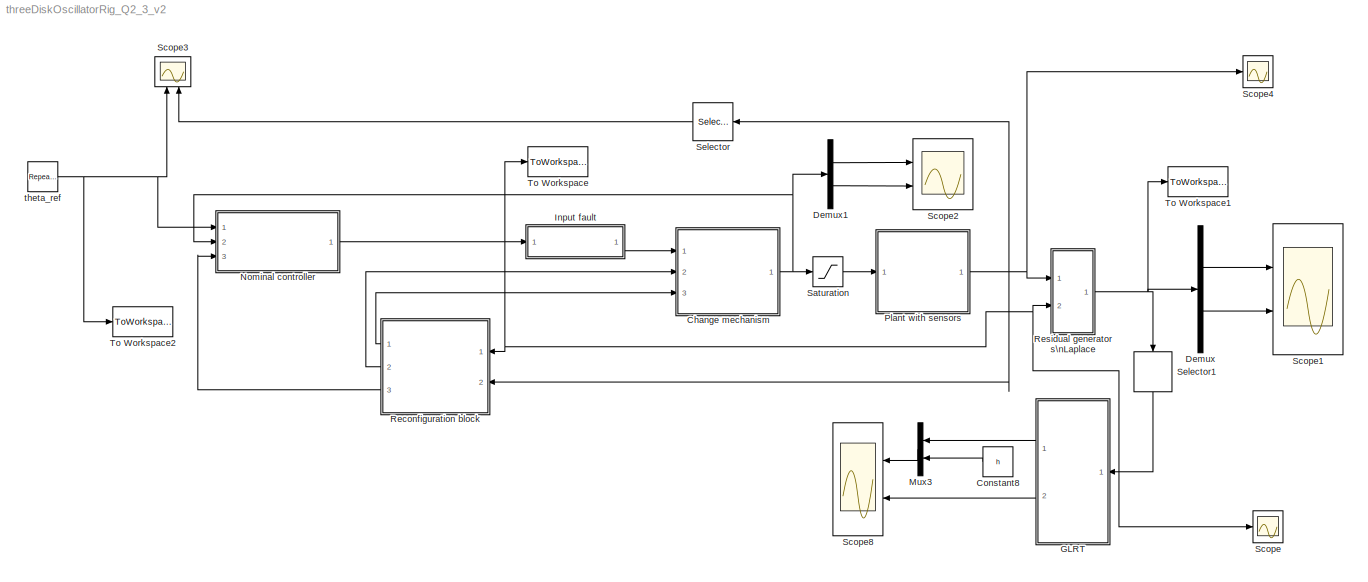
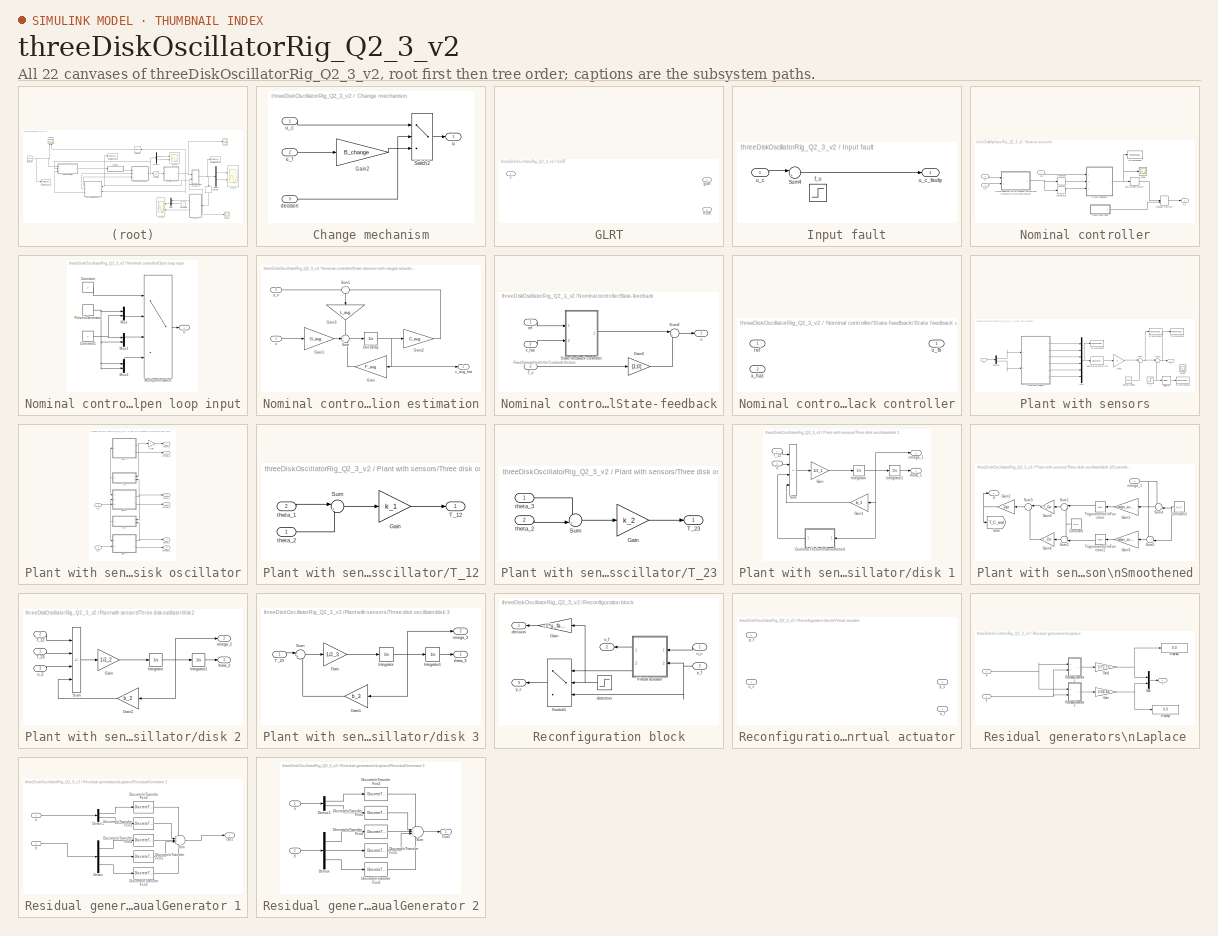
[diagram: thumbnail index - all 22 canvases of the model, root first then tree order]
MODEL threeDiskOscillatorRig_Q2_3_v2
KIND model
BLOCK [SubSystem] Change mechanism
  Ports = [3, 1]
  RequestExecContextInheritance = off
  SID = 1396
BLOCK [Gain] Change mechanism/Gain2
  Gain = B_change
  Multiplication = Matrix(K*u) (u vector)
  SID = 1340
BLOCK [Switch] Change mechanism/Switch2
  InputSameDT = off
  OutDataTypeStr = double
  SID = 1341
  SaturateOnIntegerOverflow = off
BLOCK [Inport] Change mechanism/decision
  Port = 3
  SID = 1398
BLOCK [Outport] Change mechanism/u
  SID = 1400
BLOCK [Inport] Change mechanism/u_c
  SID = 1397
BLOCK [Inport] Change mechanism/u_f
  Port = 2
  SID = 1399
BLOCK [Constant] Constant8
  SID = 1070
  Value = h
BLOCK [Demux] Demux
  Outputs = 2
  Ports = [1, 2]
  SID = 1314
BLOCK [Demux] Demux1
  Outputs = 2
  Ports = [1, 2]
  SID = 1382
BLOCK [SubSystem] GLRT
  Ports = [1, 2]
  RequestExecContextInheritance = off
  SID = 1061
BLOCK [Outport] GLRT/H_GLR
  Port = 2
  SID = 1067
  VectorParamsAs1DForOutWhenUnconnected = off
BLOCK [Outport] GLRT/g_GLR
  SID = 1066
  VectorParamsAs1DForOutWhenUnconnected = off
BLOCK [Inport] GLRT/z
  SID = 1062
BLOCK [SubSystem] Input fault
  Ports = [1, 1]
  RequestExecContextInheritance = off
  SID = 1393
BLOCK [Sum] Input fault/Sum4
  Inputs = |++
  Ports = [2, 1]
  SID = 561
BLOCK [Step] Input fault/f_u
  After = f_u
  SID = 563
  SampleTime = 0
  Time = f_u_time
BLOCK [Inport] Input fault/u_c
  SID = 1394
BLOCK [Outport] Input fault/u_c_faulty
  SID = 1395
BLOCK [Mux] Mux3
  DisplayOption = bar
  Inputs = 2
  Ports = [2, 1]
  SID = 1069
BLOCK [SubSystem] Nominal controller
  Ports = [3, 1]
  RequestExecContextInheritance = off
  SID = 1388
BLOCK [ManualSwitch] Nominal controller/Manual Switch
  CurrentSetting = 0
  SID = 1309
BLOCK [SubSystem] Nominal controller/Open loop input
  Ports = [0, 1]
  RequestExecContextInheritance = off
  SID = 1307
BLOCK [Constant] Nominal controller/Open loop input/Constant
  SID = 1302
  Value = 3
BLOCK [Constant] Nominal controller/Open loop input/Constant1
  SID = 1304
  Value = 0
BLOCK [MultiPortSwitch] Nominal controller/Open loop input/Multiport\nSwitch
  InputSameDT = off
  Ports = [4, 1]
  SID = 1301
  SaturateOnIntegerOverflow = off
BLOCK [Mux] Nominal controller/Open loop input/Mux
  DisplayOption = bar
  Inputs = 2
  Ports = [2, 1]
  SID = 1303
BLOCK [Mux] Nominal controller/Open loop input/Mux1
  DisplayOption = bar
  Inputs = 2
  Ports = [2, 1]
  SID = 1305
BLOCK [Mux] Nominal controller/Open loop input/Mux2
  DisplayOption = bar
  Inputs = 2
  Ports = [2, 1]
  SID = 1306
BLOCK [DiscretePulseGenerator] Nominal controller/Open loop input/Pulse\nGenerator
  Period = 10
  Ports = [0, 1]
  PulseType = Time based
  PulseWidth = 5
  SID = 1299
BLOCK [Outport] Nominal controller/Open loop input/u
  SID = 1308
BLOCK [Scope] Nominal controller/Scope
  Floating = off
  NumInputPorts = 1
  Ports = [1]
  SID = 657
  ScopeSpecificationString = Simulink.scopes.TimeScopeBlockCfg('CurrentConfiguration', extmgr.ConfigurationSet(extmgr.Configuration('Core','General UI',true),extmgr.Configuration('Core','Source UI',true),extmgr.Configuration('Sources','WiredSimulink',true,'DataLoggingVariableName','ScopeData1'),extmgr.Configuration('Visuals','Time Domain',true,'SerializedDisplays',{struct('MinYLimReal','-1.51308','MaxYLimReal','1.51292','YLab...<+1479ch>
BLOCK [Selector] Nominal controller/Selector
  IndexOptions = Index vector (dialog)
  Indices = [1:6]
  InputPortWidth = 7
  OutputSizes = 1
  Ports = [1, 1]
  SID = 1350
BLOCK [Selector] Nominal controller/Selector1
  IndexOptions = Index vector (dialog)
  Indices = [7]
  InputPortWidth = 7
  OutputSizes = 1
  Ports = [1, 1]
  SID = 1351
BLOCK [SubSystem] Nominal controller/State observer with integral action\nfor Coulomb friction estimation
  Ports = [2, 1]
  RequestExecContextInheritance = off
  SID = 1343
BLOCK [Gain] Nominal controller/State observer with integral action\nfor Coulomb friction estimation/Gain
  Gain = F_aug
  Multiplication = Matrix(K*u) (u vector)
  SID = 1346
BLOCK [Gain] Nominal controller/State observer with integral action\nfor Coulomb friction estimation/Gain1
  Gain = G_aug
  Multiplication = Matrix(K*u) (u vector)
  SID = 1347
BLOCK [Gain] Nominal controller/State observer with integral action\nfor Coulomb friction estimation/Gain2
  Gain = C_aug
  Multiplication = Matrix(K*u) (u vector)
  SID = 1348
BLOCK [Gain] Nominal controller/State observer with integral action\nfor Coulomb friction estimation/Gain3
  Gain = L_aug
  Multiplication = Matrix(K*u) (u vector)
  SID = 1349
BLOCK [Sum] Nominal controller/State observer with integral action\nfor Coulomb friction estimation/Sum
  Inputs = +++
  Ports = [3, 1]
  SID = 1352
BLOCK [Sum] Nominal controller/State observer with integral action\nfor Coulomb friction estimation/Sum1
  Inputs = +-
  Ports = [2, 1]
  SID = 1353
BLOCK [UnitDelay] Nominal controller/State observer with integral action\nfor Coulomb friction estimation/Unit Delay
  HasFrameUpgradeWarning = on
  SID = 1354
  SampleTime = T_s
BLOCK [Inport] Nominal controller/State observer with integral action\nfor Coulomb friction estimation/u
  SID = 1344
BLOCK [Outport] Nominal controller/State observer with integral action\nfor Coulomb friction estimation/x_aug_hat
  SID = 1355
  VectorParamsAs1DForOutWhenUnconnected = off
BLOCK [Inport] Nominal controller/State observer with integral action\nfor Coulomb friction estimation/y_c
  Port = 2
  SID = 1345
BLOCK [SubSystem] Nominal controller/State-feedback
  Ports = [3, 1]
  RequestExecContextInheritance = off
  SID = 937
BLOCK [Gain] Nominal controller/State-feedback/Gain2
  Gain = [1;0]
  SID = 1359
BLOCK [SubSystem] Nominal controller/State-feedback/State feedback controller
  Ports = [2, 1]
  RequestExecContextInheritance = off
  SID = 1409
BLOCK [Inport] Nominal controller/State-feedback/State feedback controller/ref
  SID = 1410
BLOCK [Outport] Nominal controller/State-feedback/State feedback controller/u_fb
  SID = 1412
BLOCK [Inport] Nominal controller/State-feedback/State feedback controller/x_hat
  Port = 2
  SID = 1411
BLOCK [Sum] Nominal controller/State-feedback/Sum2
  Inputs = |+-
  Ports = [2, 1]
  SID = 1358
BLOCK [Inport] Nominal controller/State-feedback/T_c
  Port = 3
  SID = 1357
BLOCK [Inport] Nominal controller/State-feedback/ref
  SID = 938
BLOCK [Outport] Nominal controller/State-feedback/u
  SID = 943
  VectorParamsAs1DForOutWhenUnconnected = off
BLOCK [Inport] Nominal controller/State-feedback/x_hat
  Port = 2
  SID = 939
BLOCK [ToWorkspace] Nominal controller/To Workspace
  FixptAsFi = on
  MaxDataPoints = inf
  Ports = [1]
  SID = 893
  SampleTime = T_s
  SaveFormat = Timeseries
  VariableName = u
BLOCK [ZeroOrderHold] Nominal controller/Zero-Order\nHold
  SID = 1122
  SampleTime = T_s
BLOCK [Inport] Nominal controller/ref
  SID = 1389
BLOCK [Inport] Nominal controller/u
  Port = 2
  SID = 1390
BLOCK [Outport] Nominal controller/u_c
  SID = 1392
BLOCK [Inport] Nominal controller/y_c
  Port = 3
  SID = 1391
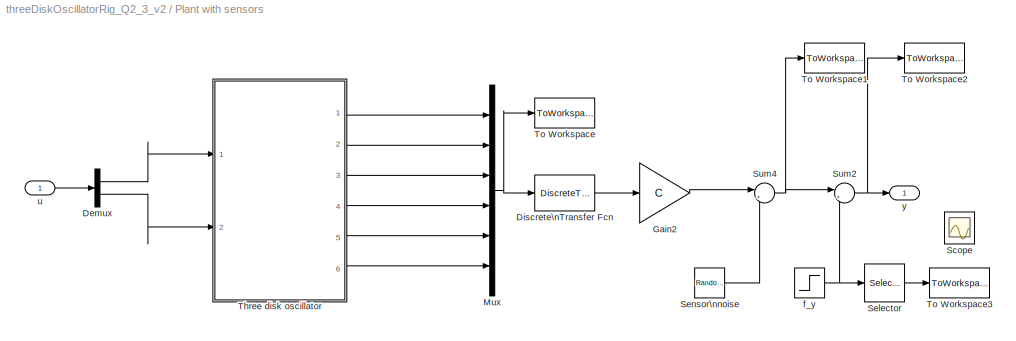
BLOCK [SubSystem] Plant with sensors
  Ports = [1, 1]
  RequestExecContextInheritance = off
  SID = 552
BLOCK [Demux] Plant with sensors/Demux
  Outputs = 2
  Ports = [1, 2]
  SID = 1297
BLOCK [DiscreteTransferFcn] Plant with sensors/Discrete\nTransfer Fcn
  Denominator = [1]
  InputPortMap = u0
  Ports = [1, 1]
  SID = 154
  SampleTime = T_s
BLOCK [Gain] Plant with sensors/Gain2
  Gain = C
  Multiplication = Matrix(K*u) (u vector)
  SID = 191
BLOCK [Mux] Plant with sensors/Mux
  DisplayOption = bar
  Inputs = 6
  Ports = [6, 1]
  SID = 141
BLOCK [Scope] Plant with sensors/Scope
  Floating = off
  NumInputPorts = 1
  Ports = [1]
  SID = 1518
  ScopeSpecificationString = Simulink.scopes.TimeScopeBlockCfg('CurrentConfiguration', extmgr.ConfigurationSet(extmgr.Configuration('Core','General UI',true),extmgr.Configuration('Core','Source UI',true),extmgr.Configuration('Sources','WiredSimulink',true,'DataLoggingVariableName','ScopeData1'),extmgr.Configuration('Visuals','Time Domain',true,'SerializedDisplays',{struct('MinYLimReal','-1.00000','MaxYLimReal','1.00000','YLab...<+1403ch>
BLOCK [Selector] Plant with sensors/Selector
  IndexOptions = Index vector (dialog)
  Indices = [2]
  InputPortWidth = 3
  OutputSizes = 1
  Ports = [1, 1]
  SID = 1276
BLOCK [RandomNumber] Plant with sensors/Sensor\nnoise
  Mean = zeros(3,1)
  SID = 655
  SampleTime = T_s
  Variance = diag(sigma_meas^2)
BLOCK [Sum] Plant with sensors/Sum2
  Inputs = |++
  Ports = [2, 1]
  SID = 565
BLOCK [Sum] Plant with sensors/Sum4
  Inputs = |++
  Ports = [2, 1]
  SID = 654
BLOCK [SubSystem] Plant with sensors/Three disk oscillator
  Ports = [2, 6]
  RequestExecContextInheritance = off
  SID = 48
BLOCK [Gain] Plant with sensors/Three disk oscillator/Gain
  SID = 136
BLOCK [SubSystem] Plant with sensors/Three disk oscillator/T_12
  Ports = [2, 1]
  RequestExecContextInheritance = off
  SID = 32
BLOCK [Gain] Plant with sensors/Three disk oscillator/T_12/Gain
  Gain = k_1
  SID = 35
BLOCK [Sum] Plant with sensors/Three disk oscillator/T_12/Sum
  Inputs = |+-
  Ports = [2, 1]
  SID = 37
BLOCK [Outport] Plant with sensors/Three disk oscillator/T_12/T_12
  SID = 41
  VectorParamsAs1DForOutWhenUnconnected = off
BLOCK [Inport] Plant with sensors/Three disk oscillator/T_12/theta_1
  Port = 2
  SID = 33
BLOCK [Inport] Plant with sensors/Three disk oscillator/T_12/theta_2
  SID = 34
BLOCK [SubSystem] Plant with sensors/Three disk oscillator/T_23
  Ports = [2, 1]
  RequestExecContextInheritance = off
  SID = 42
BLOCK [Gain] Plant with sensors/Three disk oscillator/T_23/Gain
  Gain = k_2
  SID = 45
BLOCK [Sum] Plant with sensors/Three disk oscillator/T_23/Sum
  Inputs = -+|
  Ports = [2, 1]
  SID = 46
BLOCK [Outport] Plant with sensors/Three disk oscillator/T_23/T_23
  SID = 47
  VectorParamsAs1DForOutWhenUnconnected = off
BLOCK [Inport] Plant with sensors/Three disk oscillator/T_23/theta_2
  Port = 2
  SID = 43
BLOCK [Inport] Plant with sensors/Three disk oscillator/T_23/theta_3
  SID = 44
BLOCK [SubSystem] Plant with sensors/Three disk oscillator/disk 1
  Ports = [2, 2]
  RequestExecContextInheritance = off
  SID = 6
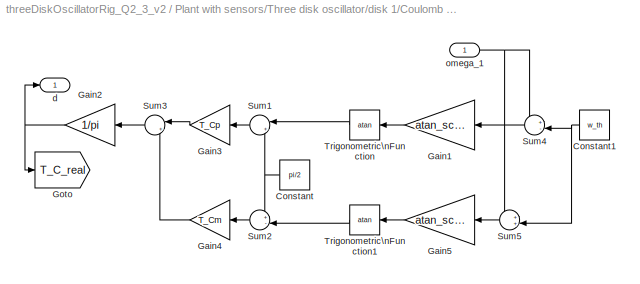
BLOCK [SubSystem] Plant with sensors/Three disk oscillator/disk 1/Coulomb Friction\nSmoothened
  Ports = [1, 1]
  RequestExecContextInheritance = off
  SID = 951
BLOCK [Constant] Plant with sensors/Three disk oscillator/disk 1/Coulomb Friction\nSmoothened/Constant
  SID = 953
  Value = pi/2
BLOCK [Constant] Plant with sensors/Three disk oscillator/disk 1/Coulomb Friction\nSmoothened/Constant1
  SID = 966
  Value = w_th
BLOCK [Gain] Plant with sensors/Three disk oscillator/disk 1/Coulomb Friction\nSmoothened/Gain1
  Gain = atan_scale
  SID = 954
BLOCK [Gain] Plant with sensors/Three disk oscillator/disk 1/Coulomb Friction\nSmoothened/Gain2
  Gain = 1/pi
  SID = 955
BLOCK [Gain] Plant with sensors/Three disk oscillator/disk 1/Coulomb Friction\nSmoothened/Gain3
  Gain = T_Cp
  SID = 956
BLOCK [Gain] Plant with sensors/Three disk oscillator/disk 1/Coulomb Friction\nSmoothened/Gain4
  Gain = T_Cm
  SID = 957
BLOCK [Gain] Plant with sensors/Three disk oscillator/disk 1/Coulomb Friction\nSmoothened/Gain5
  Gain = atan_scale
  SID = 968
BLOCK [Goto] Plant with sensors/Three disk oscillator/disk 1/Coulomb Friction\nSmoothened/Goto
  GotoTag = T_C_real
  SID = 1361
  TagVisibility = global
BLOCK [Sum] Plant with sensors/Three disk oscillator/disk 1/Coulomb Friction\nSmoothened/Sum1
  Inputs = |++
  Ports = [2, 1]
  SID = 959
BLOCK [Sum] Plant with sensors/Three disk oscillator/disk 1/Coulomb Friction\nSmoothened/Sum2
  Inputs = +-|
  Ports = [2, 1]
  SID = 960
BLOCK [Sum] Plant with sensors/Three disk oscillator/disk 1/Coulomb Friction\nSmoothened/Sum3
  Inputs = |+-
  Ports = [2, 1]
  SID = 961
BLOCK [Sum] Plant with sensors/Three disk oscillator/disk 1/Coulomb Friction\nSmoothened/Sum4
  Inputs = +-|
  Ports = [2, 1]
  SID = 965
BLOCK [Sum] Plant with sensors/Three disk oscillator/disk 1/Coulomb Friction\nSmoothened/Sum5
  Inputs = ++|
  Ports = [2, 1]
  SID = 967
BLOCK [Trigonometry] Plant with sensors/Three disk oscillator/disk 1/Coulomb Friction\nSmoothened/Trigonometric\nFunction
  Operator = atan
  Ports = [1, 1]
  SID = 962
BLOCK [Trigonometry] Plant with sensors/Three disk oscillator/disk 1/Coulomb Friction\nSmoothened/Trigonometric\nFunction1
  Operator = atan
  Ports = [1, 1]
  SID = 969
BLOCK [Outport] Plant with sensors/Three disk oscillator/disk 1/Coulomb Friction\nSmoothened/d
  SID = 963
  VectorParamsAs1DForOutWhenUnconnected = off
BLOCK [Inport] Plant with sensors/Three disk oscillator/disk 1/Coulomb Friction\nSmoothened/omega_1
  SID = 952
BLOCK [Gain] Plant with sensors/Three disk oscillator/disk 1/Gain
  Gain = 1/J_1
  SID = 4
BLOCK [Gain] Plant with sensors/Three disk oscillator/disk 1/Gain1
  Gain = b_1
  SID = 5
BLOCK [Integrator] Plant with sensors/Three disk oscillator/disk 1/Integrator
  InitialCondition = x_0(2)
  Ports = [1, 1]
  SID = 66
BLOCK [Integrator] Plant with sensors/Three disk oscillator/disk 1/Integrator1
  InitialCondition = x_0(1)
  Ports = [1, 1]
  SID = 67
BLOCK [Sum] Plant with sensors/Three disk oscillator/disk 1/Sum
  IconShape = rectangular
  Inputs = -+--
  Ports = [4, 1]
  SID = 3
BLOCK [Inport] Plant with sensors/Three disk oscillator/disk 1/T_12
  SID = 7
BLOCK [Outport] Plant with sensors/Three disk oscillator/disk 1/omega_1
  Port = 2
  SID = 10
  VectorParamsAs1DForOutWhenUnconnected = off
BLOCK [Outport] Plant with sensors/Three disk oscillator/disk 1/theta_1
  SID = 9
  VectorParamsAs1DForOutWhenUnconnected = off
BLOCK [Inport] Plant with sensors/Three disk oscillator/disk 1/u
  Port = 2
  SID = 8
BLOCK [SubSystem] Plant with sensors/Three disk oscillator/disk 2
  Ports = [3, 2]
  RequestExecContextInheritance = off
  SID = 11
BLOCK [Gain] Plant with sensors/Three disk oscillator/disk 2/Gain
  Gain = 1/J_2
  SID = 14
BLOCK [Gain] Plant with sensors/Three disk oscillator/disk 2/Gain1
  Gain = b_2
  SID = 15
BLOCK [Integrator] Plant with sensors/Three disk oscillator/disk 2/Integrator
  InitialCondition = x_0(4)
  Ports = [1, 1]
  SID = 68
BLOCK [Integrator] Plant with sensors/Three disk oscillator/disk 2/Integrator1
  InitialCondition = x_0(3)
  Ports = [1, 1]
  SID = 69
BLOCK [Sum] Plant with sensors/Three disk oscillator/disk 2/Sum
  IconShape = rectangular
  Inputs = +-+-
  Ports = [4, 1]
  SID = 16
BLOCK [Inport] Plant with sensors/Three disk oscillator/disk 2/T_12
  Port = 2
  SID = 12
BLOCK [Inport] Plant with sensors/Three disk oscillator/disk 2/T_23
  SID = 13
BLOCK [Outport] Plant with sensors/Three disk oscillator/disk 2/omega_2
  Port = 2
  SID = 20
  VectorParamsAs1DForOutWhenUnconnected = off
BLOCK [Outport] Plant with sensors/Three disk oscillator/disk 2/theta_2
  SID = 19
  VectorParamsAs1DForOutWhenUnconnected = off
BLOCK [Inport] Plant with sensors/Three disk oscillator/disk 2/u_2
  Port = 3
  SID = 1294
BLOCK [SubSystem] Plant with sensors/Three disk oscillator/disk 3
  Ports = [1, 2]
  RequestExecContextInheritance = off
  SID = 21
BLOCK [Gain] Plant with sensors/Three disk oscillator/disk 3/Gain
  Gain = 1/J_3
  SID = 24
BLOCK [Gain] Plant with sensors/Three disk oscillator/disk 3/Gain1
  Gain = b_3
  SID = 25
BLOCK [Integrator] Plant with sensors/Three disk oscillator/disk 3/Integrator
  InitialCondition = x_0(6)
  Ports = [1, 1]
  SID = 70
BLOCK [Integrator] Plant with sensors/Three disk oscillator/disk 3/Integrator1
  InitialCondition = x_0(5)
  Ports = [1, 1]
  SID = 71
BLOCK [Sum] Plant with sensors/Three disk oscillator/disk 3/Sum
  Inputs = |+-
  Ports = [2, 1]
  SID = 26
BLOCK [Inport] Plant with sensors/Three disk oscillator/disk 3/T_23
  SID = 23
BLOCK [Outport] Plant with sensors/Three disk oscillator/disk 3/omega_3
  Port = 2
  SID = 30
  VectorParamsAs1DForOutWhenUnconnected = off
BLOCK [Outport] Plant with sensors/Three disk oscillator/disk 3/theta_3
  SID = 29
  VectorParamsAs1DForOutWhenUnconnected = off
BLOCK [Outport] Plant with sensors/Three disk oscillator/omega_1
  Port = 2
  SID = 53
  VectorParamsAs1DForOutWhenUnconnected = off
BLOCK [Outport] Plant with sensors/Three disk oscillator/omega_2
  Port = 4
  SID = 52
  VectorParamsAs1DForOutWhenUnconnected = off
BLOCK [Outport] Plant with sensors/Three disk oscillator/omega_3
  Port = 6
  SID = 51
  VectorParamsAs1DForOutWhenUnconnected = off
BLOCK [Outport] Plant with sensors/Three disk oscillator/theta_1
  SID = 54
  VectorParamsAs1DForOutWhenUnconnected = off
BLOCK [Outport] Plant with sensors/Three disk oscillator/theta_2
  Port = 3
  SID = 55
  VectorParamsAs1DForOutWhenUnconnected = off
BLOCK [Outport] Plant with sensors/Three disk oscillator/theta_3
  Port = 5
  SID = 56
  VectorParamsAs1DForOutWhenUnconnected = off
BLOCK [Inport] Plant with sensors/Three disk oscillator/u_1
  SID = 50
BLOCK [Inport] Plant with sensors/Three disk oscillator/u_2
  Port = 2
  SID = 1295
BLOCK [ToWorkspace] Plant with sensors/To Workspace
  FixptAsFi = on
  MaxDataPoints = inf
  Ports = [1]
  SID = 1045
  SampleTime = T_s
  SaveFormat = Timeseries
  VariableName = x_real
BLOCK [ToWorkspace] Plant with sensors/To Workspace1
  FixptAsFi = on
  MaxDataPoints = inf
  Ports = [1]
  SID = 1272
  SampleTime = T_s
  SaveFormat = Timeseries
  VariableName = y_real
BLOCK [ToWorkspace] Plant with sensors/To Workspace2
  FixptAsFi = on
  MaxDataPoints = inf
  Ports = [1]
  SID = 1274
  SampleTime = T_s
  SaveFormat = Timeseries
  VariableName = y_meas
BLOCK [ToWorkspace] Plant with sensors/To Workspace3
  FixptAsFi = on
  MaxDataPoints = inf
  Ports = [1]
  SID = 1275
  SampleTime = T_s
  SaveFormat = Timeseries
  VariableName = f_2
BLOCK [Step] Plant with sensors/f_y
  After = f_m
  Before = [0;0;0]
  SID = 566
  SampleTime = 0
  Time = f_m_time
BLOCK [Inport] Plant with sensors/u
  SID = 553
BLOCK [Outport] Plant with sensors/y
  SID = 557
  VectorParamsAs1DForOutWhenUnconnected = off
BLOCK [SubSystem] Reconfiguration block
  Ports = [2, 3]
  RequestExecContextInheritance = off
  SID = 1315
BLOCK [Gain] Reconfiguration block/Gain
  Gain = -1*u_fault
  SID = 1381
BLOCK [Switch] Reconfiguration block/Switch1
  InputSameDT = off
  SID = 1318
  SaturateOnIntegerOverflow = off
  Threshold = 0.98
BLOCK [SubSystem] Reconfiguration block/Virtual actuator
  Ports = [2, 2]
  RequestExecContextInheritance = off
  SID = 1321
BLOCK [Inport] Reconfiguration block/Virtual actuator/u_c
  SID = 1322
BLOCK [Outport] Reconfiguration block/Virtual actuator/u_f
  SID = 1333
  VectorParamsAs1DForOutWhenUnconnected = off
BLOCK [Outport] Reconfiguration block/Virtual actuator/y_c
  Port = 2
  SID = 1334
  VectorParamsAs1DForOutWhenUnconnected = off
BLOCK [Inport] Reconfiguration block/Virtual actuator/y_f
  Port = 2
  SID = 1323
BLOCK [Outport] Reconfiguration block/decision
  SID = 1336
  VectorParamsAs1DForOutWhenUnconnected = off
BLOCK [Step] Reconfiguration block/detection
  SID = 1335
  SampleTime = T_s
  Time = detect_time
BLOCK [Inport] Reconfiguration block/u_c
  SID = 1316
BLOCK [Outport] Reconfiguration block/u_f
  Port = 2
  SID = 1337
  VectorParamsAs1DForOutWhenUnconnected = off
BLOCK [Outport] Reconfiguration block/y_c
  Port = 3
  SID = 1338
  VectorParamsAs1DForOutWhenUnconnected = off
BLOCK [Inport] Reconfiguration block/y_f
  Port = 2
  SID = 1317
BLOCK [SubSystem] Residual generators\nLaplace
  Ports = [2, 1]
  RequestExecContextInheritance = off
  SID = 835
BLOCK [Display] Residual generators\nLaplace/Display1
  Decimation = 1
  Ports = [1]
  SID = 1501
BLOCK [Display] Residual generators\nLaplace/Display2
  Decimation = 1
  Ports = [1]
  SID = 1512
BLOCK [Gain] Residual generators\nLaplace/Gain
  Gain = 1/34.64
  SID = 1502
BLOCK [Gain] Residual generators\nLaplace/Gain1
  Gain = 1/72.73
  SID = 1503
BLOCK [Mux] Residual generators\nLaplace/Mux
  DisplayOption = bar
  Inputs = 2
  Ports = [2, 1]
  SID = 896
BLOCK [SubSystem] Residual generators\nLaplace/ResidualGenerator 1
  Ports = [2, 1]
  RequestExecContextInheritance = off
  SID = 1485
BLOCK [Demux] Residual generators\nLaplace/ResidualGenerator 1/Demux
  Outputs = 3
  Ports = [1, 3]
  SID = 1488
BLOCK [Demux] Residual generators\nLaplace/ResidualGenerator 1/Demux1
  Outputs = 2
  Ports = [1, 2]
  SID = 1489
BLOCK [DiscreteTransferFcn] Residual generators\nLaplace/ResidualGenerator 1/Discrete\nTransfer Fcn1
  Denominator = cell2mat(den1(2))
  InputPortMap = u0
  Numerator = cell2mat(num1(2))
  Ports = [1, 1]
  SID = 1490
BLOCK [DiscreteTransferFcn] Residual generators\nLaplace/ResidualGenerator 1/Discrete\nTransfer Fcn2
  Denominator = cell2mat(den1(5))
  InputPortMap = u0
  Numerator = cell2mat(num1(5))
  Ports = [1, 1]
  SID = 1491
BLOCK [DiscreteTransferFcn] Residual generators\nLaplace/ResidualGenerator 1/Discrete\nTransfer Fcn3
  Denominator = cell2mat(den1(1))
  InputPortMap = u0
  Numerator = cell2mat(num1(1))
  Ports = [1, 1]
  SID = 1492
BLOCK [DiscreteTransferFcn] Residual generators\nLaplace/ResidualGenerator 1/Discrete\nTransfer Fcn4
  Denominator = cell2mat(den1(3))
  InputPortMap = u0
  Numerator = cell2mat(num1(3))
  Ports = [1, 1]
  SID = 1493
BLOCK [DiscreteTransferFcn] Residual generators\nLaplace/ResidualGenerator 1/Discrete\nTransfer Fcn5
  Denominator = cell2mat(den1(4))
  InputPortMap = u0
  Numerator = cell2mat(num1(4))
  Ports = [1, 1]
  SID = 1494
BLOCK [Outport] Residual generators\nLaplace/ResidualGenerator 1/Out1
  SID = 1496
BLOCK [Sum] Residual generators\nLaplace/ResidualGenerator 1/Sum
  Inputs = +++++
  Ports = [5, 1]
  SID = 1495
BLOCK [Inport] Residual generators\nLaplace/ResidualGenerator 1/u
  SID = 1486
BLOCK [Inport] Residual generators\nLaplace/ResidualGenerator 1/y
  Port = 2
  SID = 1487
BLOCK [SubSystem] Residual generators\nLaplace/ResidualGenerator 2
  Ports = [2, 1]
  RequestExecContextInheritance = off
  SID = 1469
BLOCK [Demux] Residual generators\nLaplace/ResidualGenerator 2/Demux
  Outputs = 3
  Ports = [1, 3]
  SID = 1472
BLOCK [Demux] Residual generators\nLaplace/ResidualGenerator 2/Demux1
  Outputs = 2
  Ports = [1, 2]
  SID = 1473
BLOCK [DiscreteTransferFcn] Residual generators\nLaplace/ResidualGenerator 2/Discrete\nTransfer Fcn1
  Denominator = cell2mat(den2(2))
  InputPortMap = u0
  Numerator = cell2mat(num2(2))
  Ports = [1, 1]
  SID = 1481
BLOCK [DiscreteTransferFcn] Residual generators\nLaplace/ResidualGenerator 2/Discrete\nTransfer Fcn2
  Denominator = cell2mat(den2(5))
  InputPortMap = u0
  Numerator = cell2mat(num2(5))
  Ports = [1, 1]
  SID = 1484
BLOCK [DiscreteTransferFcn] Residual generators\nLaplace/ResidualGenerator 2/Discrete\nTransfer Fcn3
  Denominator = cell2mat(den2(1))
  InputPortMap = u0
  Numerator = cell2mat(num2(1))
  Ports = [1, 1]
  SID = 1475
BLOCK [DiscreteTransferFcn] Residual generators\nLaplace/ResidualGenerator 2/Discrete\nTransfer Fcn4
  Denominator = cell2mat(den2(3))
  InputPortMap = u0
  Numerator = cell2mat(num2(3))
  Ports = [1, 1]
  SID = 1482
BLOCK [DiscreteTransferFcn] Residual generators\nLaplace/ResidualGenerator 2/Discrete\nTransfer Fcn5
  Denominator = cell2mat(den2(4))
  InputPortMap = u0
  Numerator = cell2mat(num2(4))
  Ports = [1, 1]
  SID = 1483
BLOCK [Outport] Residual generators\nLaplace/ResidualGenerator 2/Out1
  SID = 1480
BLOCK [Sum] Residual generators\nLaplace/ResidualGenerator 2/Sum
  Inputs = +++++
  Ports = [5, 1]
  SID = 1479
BLOCK [Inport] Residual generators\nLaplace/ResidualGenerator 2/u
  SID = 1470
BLOCK [Inport] Residual generators\nLaplace/ResidualGenerator 2/y
  Port = 2
  SID = 1471
BLOCK [Outport] Residual generators\nLaplace/r
  SID = 869
  VectorParamsAs1DForOutWhenUnconnected = off
BLOCK [Inport] Residual generators\nLaplace/u
  Port = 2
  SID = 1158
BLOCK [Inport] Residual generators\nLaplace/y
  SID = 837
BLOCK [Saturate] Saturation
  LowerLimit = -2
  SID = 651
  UpperLimit = 2
BLOCK [Scope] Scope
  Floating = off
  NumInputPorts = 1
  Ports = [1]
  SID = 1504
  ScopeSpecificationString = Simulink.scopes.TimeScopeBlockCfg('CurrentConfiguration', extmgr.ConfigurationSet(extmgr.Configuration('Core','General UI',true),extmgr.Configuration('Core','Source UI',true),extmgr.Configuration('Sources','WiredSimulink',true,'DataLoggingVariableName','ScopeData1'),extmgr.Configuration('Visuals','Time Domain',true,'SerializedDisplays',{struct('MinYLimReal','-0.125','MaxYLimReal','1.125','YLabelRe...<+1417ch>
BLOCK [Scope] Scope1
  Floating = off
  NumInputPorts = 2
  Ports = [2]
  SID = 890
  ScopeSpecificationString = Simulink.scopes.TimeScopeBlockCfg('CurrentConfiguration', extmgr.ConfigurationSet(extmgr.Configuration('Core','General UI',true),extmgr.Configuration('Core','Source UI',true),extmgr.Configuration('Sources','WiredSimulink',true,'SampleTime','T_s','DataLoggingVariableName','ScopeData4'),extmgr.Configuration('Visuals','Time Domain',true,'SerializedDisplays',{struct('MinYLimReal','-0.55726','MaxYLimRe...<+2294ch>
BLOCK [Scope] Scope2
  Floating = off
  NumInputPorts = 2
  Ports = [2]
  SID = 1377
  ScopeSpecificationString = Simulink.scopes.TimeScopeBlockCfg('CurrentConfiguration', extmgr.ConfigurationSet(extmgr.Configuration('Core','General UI',true),extmgr.Configuration('Core','Source UI',true),extmgr.Configuration('Sources','WiredSimulink',true,'SampleTime','T_s','DataLoggingVariableName','ScopeData3'),extmgr.Configuration('Visuals','Time Domain',true,'SerializedDisplays',{struct('MinYLimReal','-0.125','MaxYLimReal...<+2313ch>
BLOCK [Scope] Scope3
  Floating = off
  NumInputPorts = 2
  Ports = [2]
  SID = 152
  ScopeSpecificationString = Simulink.scopes.TimeScopeBlockCfg('CurrentConfiguration', extmgr.ConfigurationSet(extmgr.Configuration('Core','General UI',true),extmgr.Configuration('Core','Source UI',true),extmgr.Configuration('Sources','WiredSimulink',true,'SampleTime','T_s','DataLoggingVariableName','ScopeData3'),extmgr.Configuration('Visuals','Time Domain',true,'SerializedDisplays',{struct('MinYLimReal','-0.48008','MaxYLimRe...<+1663ch>
BLOCK [Scope] Scope4
  Floating = off
  NumInputPorts = 1
  Ports = [1]
  SID = 1505
  ScopeSpecificationString = Simulink.scopes.TimeScopeBlockCfg('CurrentConfiguration', extmgr.ConfigurationSet(extmgr.Configuration('Core','General UI',true),extmgr.Configuration('Core','Source UI',true),extmgr.Configuration('Sources','WiredSimulink',true,'DataLoggingVariableName','ScopeData2'),extmgr.Configuration('Visuals','Time Domain',true,'SerializedDisplays',{struct('MinYLimReal','-9230.29896','MaxYLimReal','83072.64602...<+1479ch>
BLOCK [Scope] Scope8
  Floating = off
  NumInputPorts = 2
  Ports = [2]
  SID = 1059
  ScopeSpecificationString = Simulink.scopes.TimeScopeBlockCfg('CurrentConfiguration', extmgr.ConfigurationSet(extmgr.Configuration('Core','General UI',true),extmgr.Configuration('Core','Source UI',true),extmgr.Configuration('Sources','WiredSimulink',true,'DataLoggingVariableName','ScopeData1'),extmgr.Configuration('Visuals','Time Domain',true,'SerializedDisplays',{struct('MinYLimReal','-0.94404','MaxYLimReal','9.08025','YLab...<+2094ch>
BLOCK [Selector] Selector
  IndexOptions = Index vector (dialog)
  Indices = [3]
  InputPortWidth = 3
  OutputSizes = 1
  Ports = [1, 1]
  SID = 633
BLOCK [Selector] Selector1
  IndexOptions = Index vector (dialog)
  Indices = [2]
  InputPortWidth = 2
  OutputSizes = 1
  Ports = [1, 1]
  SID = 1177
BLOCK [ToWorkspace] To Workspace
  FixptAsFi = on
  MaxDataPoints = inf
  Ports = [1]
  SID = 1263
  SampleTime = T_s
  SaveFormat = Timeseries
  VariableName = input_u
BLOCK [ToWorkspace] To Workspace1
  FixptAsFi = on
  MaxDataPoints = inf
  Ports = [1]
  SID = 1264
  SampleTime = T_s
  SaveFormat = Timeseries
  VariableName = r
BLOCK [ToWorkspace] To Workspace2
  FixptAsFi = on
  MaxDataPoints = inf
  Ports = [1]
  SID = 1271
  SampleTime = T_s
  SaveFormat = Timeseries
  VariableName = theta_ref
BLOCK [Reference] theta_ref  REF=simulink/Sources/Repeating\nSequence\nStair
  ConRadixGroup = Best Precision: Vector-wise
  LockScale = off
  OutDataType = fixdt(0,8)
  OutDataTypeStr = double
  OutMax = []
  OutMin = []
  OutScaling = 2^-12
  OutValues = [0 1.57 0]
  OutputDataTypeScalingMode = double
  Ports = [0, 1]
  RTWMemSecDataConstants = Inherit from model
  RTWMemSecDataInternal = Inherit from model
  RTWMemSecDataParameters = Inherit from model
  RTWMemSecFuncExecute = Inherit from model
  RTWMemSecFuncInitTerm = Inherit from model
  SID = 64
  SourceBlock = simulink/Sources/Repeating\nSequence\nStair
  SourceProductBaseCode = SL
  SourceType = Repeating Sequence Stair
  tsamp = 5
ANNOTATION Nominal controller/State-feedback: Feed-forward term for Coulomb friction
LINE Change mechanism/Gain2:1 -> Change mechanism/Switch2:3
LINE Change mechanism/Switch2:1 -> Change mechanism/u:1
LINE Change mechanism/decision:1 -> Change mechanism/Switch2:2
LINE Change mechanism/u_c:1 -> Change mechanism/Switch2:1
LINE Change mechanism/u_f:1 -> Change mechanism/Gain2:1
NET Change mechanism:1 -> Demux1:1, Nominal controller:2, Saturation:1
LINE Constant8:1 -> Mux3:2
LINE Demux1:1 -> Scope2:1
LINE Demux1:2 -> Scope2:2
LINE Demux:1 -> Scope1:1
LINE Demux:2 -> Scope1:2
LINE GLRT:1 -> Mux3:1
LINE GLRT:2 -> Scope8:2
LINE Input fault/Sum4:1 -> Input fault/u_c_faulty:1
LINE Input fault/u_c:1 -> Input fault/Sum4:1
LINE Input fault:1 -> Change mechanism:1
LINE Mux3:1 -> Scope8:1
LINE Nominal controller/Manual Switch:1 -> Nominal controller/u_c:1
NET Nominal controller/Open loop input/Constant1:1 -> Nominal controller/Open loop input/Mux1:1, Nominal controller/Open loop input/Mux:2
LINE Nominal controller/Open loop input/Constant:1 -> Nominal controller/Open loop input/Multiport\nSwitch:1
LINE Nominal controller/Open loop input/Multiport\nSwitch:1 -> Nominal controller/Open loop input/u:1
LINE Nominal controller/Open loop input/Mux1:1 -> Nominal controller/Open loop input/Multiport\nSwitch:3
LINE Nominal controller/Open loop input/Mux2:1 -> Nominal controller/Open loop input/Multiport\nSwitch:4
LINE Nominal controller/Open loop input/Mux:1 -> Nominal controller/Open loop input/Multiport\nSwitch:2
NET Nominal controller/Open loop input/Pulse\nGenerator:1 -> Nominal controller/Open loop input/Mux1:2, Nominal controller/Open loop input/Mux2:1, Nominal controller/Open loop input/Mux2:2, Nominal controller/Open loop input/Mux:1
LINE Nominal controller/Open loop input:1 -> Nominal controller/Manual Switch:2
LINE Nominal controller/Selector1:1 -> Nominal controller/State-feedback:3
LINE Nominal controller/Selector:1 -> Nominal controller/State-feedback:2
LINE Nominal controller/State observer with integral action\nfor Coulomb friction estimation/Gain1:1 -> Nominal controller/State observer with integral action\nfor Coulomb friction estimation/Sum:2
LINE Nominal controller/State observer with integral action\nfor Coulomb friction estimation/Gain2:1 -> Nominal controller/State observer with integral action\nfor Coulomb friction estimation/Sum1:2
LINE Nominal controller/State observer with integral action\nfor Coulomb friction estimation/Gain3:1 -> Nominal controller/State observer with integral action\nfor Coulomb friction estimation/Sum:1
LINE Nominal controller/State observer with integral action\nfor Coulomb friction estimation/Gain:1 -> Nominal controller/State observer with integral action\nfor Coulomb friction estimation/Sum:3
LINE Nominal controller/State observer with integral action\nfor Coulomb friction estimation/Sum1:1 -> Nominal controller/State observer with integral action\nfor Coulomb friction estimation/Gain3:1
LINE Nominal controller/State observer with integral action\nfor Coulomb friction estimation/Sum:1 -> Nominal controller/State observer with integral action\nfor Coulomb friction estimation/Unit Delay:1
NET Nominal controller/State observer with integral action\nfor Coulomb friction estimation/Unit Delay:1 -> Nominal controller/State observer with integral action\nfor Coulomb friction estimation/Gain2:1, Nominal controller/State observer with integral action\nfor Coulomb friction estimation/Gain:1, Nominal controller/State observer with integral action\nfor Coulomb friction estimation/x_aug_hat:1
LINE Nominal controller/State observer with integral action\nfor Coulomb friction estimation/u:1 -> Nominal controller/State observer with integral action\nfor Coulomb friction estimation/Gain1:1
LINE Nominal controller/State observer with integral action\nfor Coulomb friction estimation/y_c:1 -> Nominal controller/State observer with integral action\nfor Coulomb friction estimation/Sum1:1
NET Nominal controller/State observer with integral action\nfor Coulomb friction estimation:1 -> Nominal controller/Selector1:1, Nominal controller/Selector:1
LINE Nominal controller/State-feedback/Gain2:1 -> Nominal controller/State-feedback/Sum2:2
LINE Nominal controller/State-feedback/State feedback controller:1 -> Nominal controller/State-feedback/Sum2:1
LINE Nominal controller/State-feedback/Sum2:1 -> Nominal controller/State-feedback/u:1
LINE Nominal controller/State-feedback/T_c:1 -> Nominal controller/State-feedback/Gain2:1
LINE Nominal controller/State-feedback/ref:1 -> Nominal controller/State-feedback/State feedback controller:1
LINE Nominal controller/State-feedback/x_hat:1 -> Nominal controller/State-feedback/State feedback controller:2
NET Nominal controller/State-feedback:1 -> Nominal controller/Scope:1, Nominal controller/To Workspace:1, Nominal controller/Zero-Order\nHold:1
LINE Nominal controller/Zero-Order\nHold:1 -> Nominal controller/Manual Switch:1
LINE Nominal controller/ref:1 -> Nominal controller/State-feedback:1
LINE Nominal controller/u:1 -> Nominal controller/State observer with integral action\nfor Coulomb friction estimation:1
LINE Nominal controller/y_c:1 -> Nominal controller/State observer with integral action\nfor Coulomb friction estimation:2
NET Nominal controller:1 -> Input fault:1, Reconfiguration block:1, Residual generators\nLaplace:2, Scope:1, To Workspace:1
LINE Plant with sensors/Demux:1 -> Plant with sensors/Three disk oscillator:1
LINE Plant with sensors/Demux:2 -> Plant with sensors/Three disk oscillator:2
LINE Plant with sensors/Discrete\nTransfer Fcn:1 -> Plant with sensors/Gain2:1
LINE Plant with sensors/Gain2:1 -> Plant with sensors/Sum4:1
NET Plant with sensors/Mux:1 -> Plant with sensors/Discrete\nTransfer Fcn:1, Plant with sensors/To Workspace:1
LINE Plant with sensors/Selector:1 -> Plant with sensors/To Workspace3:1
LINE Plant with sensors/Sensor\nnoise:1 -> Plant with sensors/Sum4:2
NET Plant with sensors/Sum2:1 -> Plant with sensors/To Workspace2:1, Plant with sensors/y:1
NET Plant with sensors/Sum4:1 -> Plant with sensors/Sum2:1, Plant with sensors/To Workspace1:1
LINE Plant with sensors/Three disk oscillator/Gain:1 -> Plant with sensors/Three disk oscillator/theta_3:1
LINE Plant with sensors/Three disk oscillator/T_12/Gain:1 -> Plant with sensors/Three disk oscillator/T_12/T_12:1
LINE Plant with sensors/Three disk oscillator/T_12/Sum:1 -> Plant with sensors/Three disk oscillator/T_12/Gain:1
LINE Plant with sensors/Three disk oscillator/T_12/theta_1:1 -> Plant with sensors/Three disk oscillator/T_12/Sum:1
LINE Plant with sensors/Three disk oscillator/T_12/theta_2:1 -> Plant with sensors/Three disk oscillator/T_12/Sum:2
NET Plant with sensors/Three disk oscillator/T_12:1 -> Plant with sensors/Three disk oscillator/disk 1:1, Plant with sensors/Three disk oscillator/disk 2:2
LINE Plant with sensors/Three disk oscillator/T_23/Gain:1 -> Plant with sensors/Three disk oscillator/T_23/T_23:1
LINE Plant with sensors/Three disk oscillator/T_23/Sum:1 -> Plant with sensors/Three disk oscillator/T_23/Gain:1
LINE Plant with sensors/Three disk oscillator/T_23/theta_2:1 -> Plant with sensors/Three disk oscillator/T_23/Sum:2
LINE Plant with sensors/Three disk oscillator/T_23/theta_3:1 -> Plant with sensors/Three disk oscillator/T_23/Sum:1
NET Plant with sensors/Three disk oscillator/T_23:1 -> Plant with sensors/Three disk oscillator/disk 2:1, Plant with sensors/Three disk oscillator/disk 3:1
NET Plant with sensors/Three disk oscillator/disk 1/Coulomb Friction\nSmoothened/Constant1:1 -> Plant with sensors/Three disk oscillator/disk 1/Coulomb Friction\nSmoothened/Sum4:2, Plant with sensors/Three disk oscillator/disk 1/Coulomb Friction\nSmoothened/Sum5:2
NET Plant with sensors/Three disk oscillator/disk 1/Coulomb Friction\nSmoothened/Constant:1 -> Plant with sensors/Three disk oscillator/disk 1/Coulomb Friction\nSmoothened/Sum1:2, Plant with sensors/Three disk oscillator/disk 1/Coulomb Friction\nSmoothened/Sum2:1
LINE Plant with sensors/Three disk oscillator/disk 1/Coulomb Friction\nSmoothened/Gain1:1 -> Plant with sensors/Three disk oscillator/disk 1/Coulomb Friction\nSmoothened/Trigonometric\nFunction:1
NET Plant with sensors/Three disk oscillator/disk 1/Coulomb Friction\nSmoothened/Gain2:1 -> Plant with sensors/Three disk oscillator/disk 1/Coulomb Friction\nSmoothened/Goto:1, Plant with sensors/Three disk oscillator/disk 1/Coulomb Friction\nSmoothened/d:1
LINE Plant with sensors/Three disk oscillator/disk 1/Coulomb Friction\nSmoothened/Gain3:1 -> Plant with sensors/Three disk oscillator/disk 1/Coulomb Friction\nSmoothened/Sum3:1
LINE Plant with sensors/Three disk oscillator/disk 1/Coulomb Friction\nSmoothened/Gain4:1 -> Plant with sensors/Three disk oscillator/disk 1/Coulomb Friction\nSmoothened/Sum3:2
LINE Plant with sensors/Three disk oscillator/disk 1/Coulomb Friction\nSmoothened/Gain5:1 -> Plant with sensors/Three disk oscillator/disk 1/Coulomb Friction\nSmoothened/Trigonometric\nFunction1:1
LINE Plant with sensors/Three disk oscillator/disk 1/Coulomb Friction\nSmoothened/Sum1:1 -> Plant with sensors/Three disk oscillator/disk 1/Coulomb Friction\nSmoothened/Gain3:1
LINE Plant with sensors/Three disk oscillator/disk 1/Coulomb Friction\nSmoothened/Sum2:1 -> Plant with sensors/Three disk oscillator/disk 1/Coulomb Friction\nSmoothened/Gain4:1
LINE Plant with sensors/Three disk oscillator/disk 1/Coulomb Friction\nSmoothened/Sum3:1 -> Plant with sensors/Three disk oscillator/disk 1/Coulomb Friction\nSmoothened/Gain2:1
LINE Plant with sensors/Three disk oscillator/disk 1/Coulomb Friction\nSmoothened/Sum4:1 -> Plant with sensors/Three disk oscillator/disk 1/Coulomb Friction\nSmoothened/Gain1:1
LINE Plant with sensors/Three disk oscillator/disk 1/Coulomb Friction\nSmoothened/Sum5:1 -> Plant with sensors/Three disk oscillator/disk 1/Coulomb Friction\nSmoothened/Gain5:1
LINE Plant with sensors/Three disk oscillator/disk 1/Coulomb Friction\nSmoothened/Trigonometric\nFunction1:1 -> Plant with sensors/Three disk oscillator/disk 1/Coulomb Friction\nSmoothened/Sum2:2
LINE Plant with sensors/Three disk oscillator/disk 1/Coulomb Friction\nSmoothened/Trigonometric\nFunction:1 -> Plant with sensors/Three disk oscillator/disk 1/Coulomb Friction\nSmoothened/Sum1:1
NET Plant with sensors/Three disk oscillator/disk 1/Coulomb Friction\nSmoothened/omega_1:1 -> Plant with sensors/Three disk oscillator/disk 1/Coulomb Friction\nSmoothened/Sum4:1, Plant with sensors/Three disk oscillator/disk 1/Coulomb Friction\nSmoothened/Sum5:1
LINE Plant with sensors/Three disk oscillator/disk 1/Coulomb Friction\nSmoothened:1 -> Plant with sensors/Three disk oscillator/disk 1/Sum:3
LINE Plant with sensors/Three disk oscillator/disk 1/Gain1:1 -> Plant with sensors/Three disk oscillator/disk 1/Sum:4
LINE Plant with sensors/Three disk oscillator/disk 1/Gain:1 -> Plant with sensors/Three disk oscillator/disk 1/Integrator:1
LINE Plant with sensors/Three disk oscillator/disk 1/Integrator1:1 -> Plant with sensors/Three disk oscillator/disk 1/theta_1:1
NET Plant with sensors/Three disk oscillator/disk 1/Integrator:1 -> Plant with sensors/Three disk oscillator/disk 1/Coulomb Friction\nSmoothened:1, Plant with sensors/Three disk oscillator/disk 1/Gain1:1, Plant with sensors/Three disk oscillator/disk 1/Integrator1:1, Plant with sensors/Three disk oscillator/disk 1/omega_1:1
LINE Plant with sensors/Three disk oscillator/disk 1/Sum:1 -> Plant with sensors/Three disk oscillator/disk 1/Gain:1
LINE Plant with sensors/Three disk oscillator/disk 1/T_12:1 -> Plant with sensors/Three disk oscillator/disk 1/Sum:1
LINE Plant with sensors/Three disk oscillator/disk 1/u:1 -> Plant with sensors/Three disk oscillator/disk 1/Sum:2
NET Plant with sensors/Three disk oscillator/disk 1:1 -> Plant with sensors/Three disk oscillator/T_12:2, Plant with sensors/Three disk oscillator/theta_1:1
LINE Plant with sensors/Three disk oscillator/disk 1:2 -> Plant with sensors/Three disk oscillator/omega_1:1
LINE Plant with sensors/Three disk oscillator/disk 2/Gain1:1 -> Plant with sensors/Three disk oscillator/disk 2/Sum:4
LINE Plant with sensors/Three disk oscillator/disk 2/Gain:1 -> Plant with sensors/Three disk oscillator/disk 2/Integrator:1
LINE Plant with sensors/Three disk oscillator/disk 2/Integrator1:1 -> Plant with sensors/Three disk oscillator/disk 2/theta_2:1
NET Plant with sensors/Three disk oscillator/disk 2/Integrator:1 -> Plant with sensors/Three disk oscillator/disk 2/Gain1:1, Plant with sensors/Three disk oscillator/disk 2/Integrator1:1, Plant with sensors/Three disk oscillator/disk 2/omega_2:1
LINE Plant with sensors/Three disk oscillator/disk 2/Sum:1 -> Plant with sensors/Three disk oscillator/disk 2/Gain:1
LINE Plant with sensors/Three disk oscillator/disk 2/T_12:1 -> Plant with sensors/Three disk oscillator/disk 2/Sum:1
LINE Plant with sensors/Three disk oscillator/disk 2/T_23:1 -> Plant with sensors/Three disk oscillator/disk 2/Sum:2
LINE Plant with sensors/Three disk oscillator/disk 2/u_2:1 -> Plant with sensors/Three disk oscillator/disk 2/Sum:3
NET Plant with sensors/Three disk oscillator/disk 2:1 -> Plant with sensors/Three disk oscillator/T_12:1, Plant with sensors/Three disk oscillator/T_23:2, Plant with sensors/Three disk oscillator/theta_2:1
LINE Plant with sensors/Three disk oscillator/disk 2:2 -> Plant with sensors/Three disk oscillator/omega_2:1
LINE Plant with sensors/Three disk oscillator/disk 3/Gain1:1 -> Plant with sensors/Three disk oscillator/disk 3/Sum:2
LINE Plant with sensors/Three disk oscillator/disk 3/Gain:1 -> Plant with sensors/Three disk oscillator/disk 3/Integrator:1
LINE Plant with sensors/Three disk oscillator/disk 3/Integrator1:1 -> Plant with sensors/Three disk oscillator/disk 3/theta_3:1
NET Plant with sensors/Three disk oscillator/disk 3/Integrator:1 -> Plant with sensors/Three disk oscillator/disk 3/Gain1:1, Plant with sensors/Three disk oscillator/disk 3/Integrator1:1, Plant with sensors/Three disk oscillator/disk 3/omega_3:1
LINE Plant with sensors/Three disk oscillator/disk 3/Sum:1 -> Plant with sensors/Three disk oscillator/disk 3/Gain:1
LINE Plant with sensors/Three disk oscillator/disk 3/T_23:1 -> Plant with sensors/Three disk oscillator/disk 3/Sum:1
NET Plant with sensors/Three disk oscillator/disk 3:1 -> Plant with sensors/Three disk oscillator/Gain:1, Plant with sensors/Three disk oscillator/T_23:1
LINE Plant with sensors/Three disk oscillator/disk 3:2 -> Plant with sensors/Three disk oscillator/omega_3:1
LINE Plant with sensors/Three disk oscillator/u_1:1 -> Plant with sensors/Three disk oscillator/disk 1:2
LINE Plant with sensors/Three disk oscillator/u_2:1 -> Plant with sensors/Three disk oscillator/disk 2:3
LINE Plant with sensors/Three disk oscillator:1 -> Plant with sensors/Mux:1
LINE Plant with sensors/Three disk oscillator:2 -> Plant with sensors/Mux:2
LINE Plant with sensors/Three disk oscillator:3 -> Plant with sensors/Mux:3
LINE Plant with sensors/Three disk oscillator:4 -> Plant with sensors/Mux:4
LINE Plant with sensors/Three disk oscillator:5 -> Plant with sensors/Mux:5
LINE Plant with sensors/Three disk oscillator:6 -> Plant with sensors/Mux:6
NET Plant with sensors/f_y:1 -> Plant with sensors/Selector:1, Plant with sensors/Sum2:2
LINE Plant with sensors/u:1 -> Plant with sensors/Demux:1
NET Plant with sensors:1 -> Reconfiguration block:2, Residual generators\nLaplace:1, Scope4:1, Selector:1
LINE Reconfiguration block/Gain:1 -> Reconfiguration block/decision:1
LINE Reconfiguration block/Switch1:1 -> Reconfiguration block/y_c:1
LINE Reconfiguration block/Virtual actuator:1 -> Reconfiguration block/u_f:1
LINE Reconfiguration block/Virtual actuator:2 -> Reconfiguration block/Switch1:1
NET Reconfiguration block/detection:1 -> Reconfiguration block/Gain:1, Reconfiguration block/Switch1:2
LINE Reconfiguration block/u_c:1 -> Reconfiguration block/Virtual actuator:1
NET Reconfiguration block/y_f:1 -> Reconfiguration block/Switch1:3, Reconfiguration block/Virtual actuator:2
LINE Reconfiguration block:1 -> Change mechanism:3
LINE Reconfiguration block:2 -> Change mechanism:2
LINE Reconfiguration block:3 -> Nominal controller:3
NET Residual generators\nLaplace/Gain1:1 -> Residual generators\nLaplace/Display1:1, Residual generators\nLaplace/Mux:1
NET Residual generators\nLaplace/Gain:1 -> Residual generators\nLaplace/Display2:1, Residual generators\nLaplace/Mux:2
LINE Residual generators\nLaplace/Mux:1 -> Residual generators\nLaplace/r:1
LINE Residual generators\nLaplace/ResidualGenerator 1/Demux1:1 -> Residual generators\nLaplace/ResidualGenerator 1/Discrete\nTransfer Fcn3:1
LINE Residual generators\nLaplace/ResidualGenerator 1/Demux1:2 -> Residual generators\nLaplace/ResidualGenerator 1/Discrete\nTransfer Fcn1:1
LINE Residual generators\nLaplace/ResidualGenerator 1/Demux:1 -> Residual generators\nLaplace/ResidualGenerator 1/Discrete\nTransfer Fcn4:1
LINE Residual generators\nLaplace/ResidualGenerator 1/Demux:2 -> Residual generators\nLaplace/ResidualGenerator 1/Discrete\nTransfer Fcn5:1
LINE Residual generators\nLaplace/ResidualGenerator 1/Demux:3 -> Residual generators\nLaplace/ResidualGenerator 1/Discrete\nTransfer Fcn2:1
LINE Residual generators\nLaplace/ResidualGenerator 1/Discrete\nTransfer Fcn1:1 -> Residual generators\nLaplace/ResidualGenerator 1/Sum:2
LINE Residual generators\nLaplace/ResidualGenerator 1/Discrete\nTransfer Fcn2:1 -> Residual generators\nLaplace/ResidualGenerator 1/Sum:5
LINE Residual generators\nLaplace/ResidualGenerator 1/Discrete\nTransfer Fcn3:1 -> Residual generators\nLaplace/ResidualGenerator 1/Sum:1
LINE Residual generators\nLaplace/ResidualGenerator 1/Discrete\nTransfer Fcn4:1 -> Residual generators\nLaplace/ResidualGenerator 1/Sum:3
LINE Residual generators\nLaplace/ResidualGenerator 1/Discrete\nTransfer Fcn5:1 -> Residual generators\nLaplace/ResidualGenerator 1/Sum:4
LINE Residual generators\nLaplace/ResidualGenerator 1/Sum:1 -> Residual generators\nLaplace/ResidualGenerator 1/Out1:1
LINE Residual generators\nLaplace/ResidualGenerator 1/u:1 -> Residual generators\nLaplace/ResidualGenerator 1/Demux1:1
LINE Residual generators\nLaplace/ResidualGenerator 1/y:1 -> Residual generators\nLaplace/ResidualGenerator 1/Demux:1
LINE Residual generators\nLaplace/ResidualGenerator 1:1 -> Residual generators\nLaplace/Gain1:1
LINE Residual generators\nLaplace/ResidualGenerator 2/Demux1:1 -> Residual generators\nLaplace/ResidualGenerator 2/Discrete\nTransfer Fcn3:1
LINE Residual generators\nLaplace/ResidualGenerator 2/Demux1:2 -> Residual generators\nLaplace/ResidualGenerator 2/Discrete\nTransfer Fcn1:1
LINE Residual generators\nLaplace/ResidualGenerator 2/Demux:1 -> Residual generators\nLaplace/ResidualGenerator 2/Discrete\nTransfer Fcn4:1
LINE Residual generators\nLaplace/ResidualGenerator 2/Demux:2 -> Residual generators\nLaplace/ResidualGenerator 2/Discrete\nTransfer Fcn5:1
LINE Residual generators\nLaplace/ResidualGenerator 2/Demux:3 -> Residual generators\nLaplace/ResidualGenerator 2/Discrete\nTransfer Fcn2:1
LINE Residual generators\nLaplace/ResidualGenerator 2/Discrete\nTransfer Fcn1:1 -> Residual generators\nLaplace/ResidualGenerator 2/Sum:2
LINE Residual generators\nLaplace/ResidualGenerator 2/Discrete\nTransfer Fcn2:1 -> Residual generators\nLaplace/ResidualGenerator 2/Sum:5
LINE Residual generators\nLaplace/ResidualGenerator 2/Discrete\nTransfer Fcn3:1 -> Residual generators\nLaplace/ResidualGenerator 2/Sum:1
LINE Residual generators\nLaplace/ResidualGenerator 2/Discrete\nTransfer Fcn4:1 -> Residual generators\nLaplace/ResidualGenerator 2/Sum:3
LINE Residual generators\nLaplace/ResidualGenerator 2/Discrete\nTransfer Fcn5:1 -> Residual generators\nLaplace/ResidualGenerator 2/Sum:4
LINE Residual generators\nLaplace/ResidualGenerator 2/Sum:1 -> Residual generators\nLaplace/ResidualGenerator 2/Out1:1
LINE Residual generators\nLaplace/ResidualGenerator 2/u:1 -> Residual generators\nLaplace/ResidualGenerator 2/Demux1:1
LINE Residual generators\nLaplace/ResidualGenerator 2/y:1 -> Residual generators\nLaplace/ResidualGenerator 2/Demux:1
LINE Residual generators\nLaplace/ResidualGenerator 2:1 -> Residual generators\nLaplace/Gain:1
NET Residual generators\nLaplace/u:1 -> Residual generators\nLaplace/ResidualGenerator 1:1, Residual generators\nLaplace/ResidualGenerator 2:1
NET Residual generators\nLaplace/y:1 -> Residual generators\nLaplace/ResidualGenerator 1:2, Residual generators\nLaplace/ResidualGenerator 2:2
NET Residual generators\nLaplace:1 -> Demux:1, Selector1:1, To Workspace1:1
LINE Saturation:1 -> Plant with sensors:1
LINE Selector1:1 -> GLRT:1
LINE Selector:1 -> Scope3:2
NET theta_ref:1 -> Nominal controller:1, Scope3:1, To Workspace2:1
note: NET lines group one-source signal fan-out (src -> all destinations, sorted); 1:1 wires keep LINE
